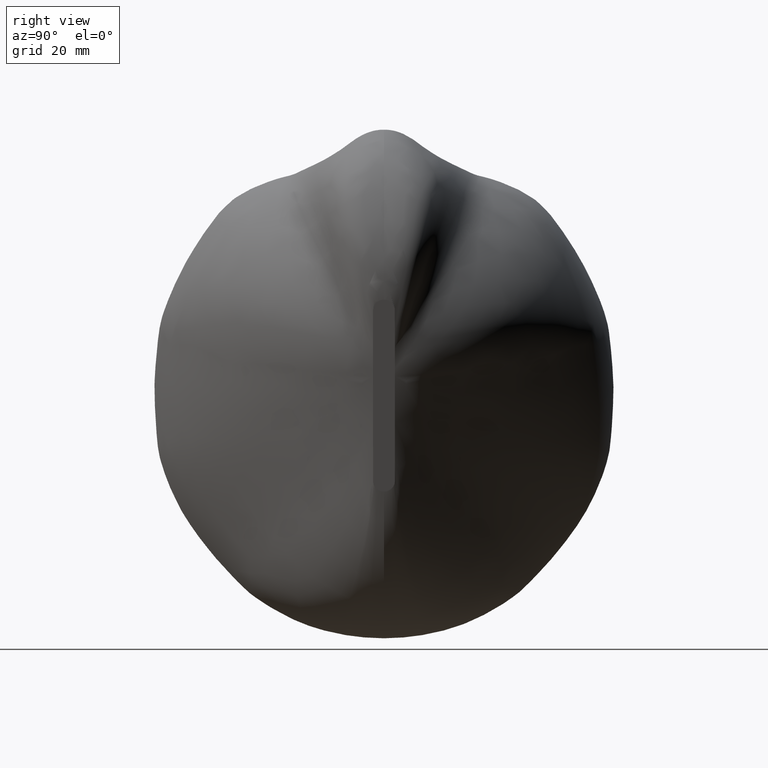
[diagram: clean part render]
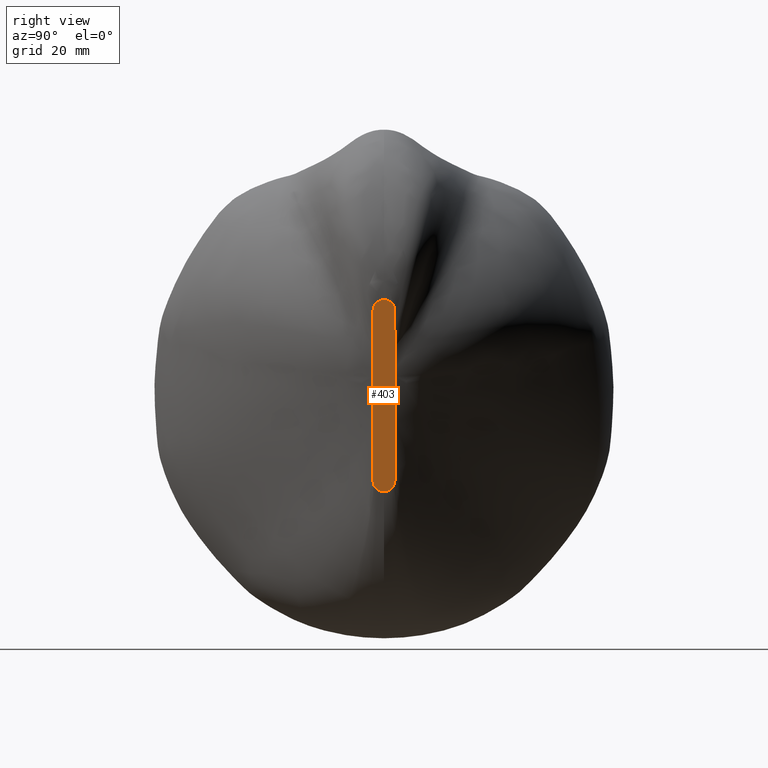
[diagram: same view with one face highlighted and labeled with its STEP entity id]
A machine part, right view. The second image highlights one B-rep face of the part: STEP entity #403.
In plain terms, the highlighted planar face has unit normal (-0.9751, -0, 0.2216).
Its self-contained STEP definition (entity closure, byte-faithful):
#16=PLANE('',#425);
#29=FACE_OUTER_BOUND('',#42,.T.);
#42=EDGE_LOOP('',(#376,#377,#378,#379,#380,#381,#382,#383));
#93=B_SPLINE_CURVE_WITH_KNOTS('',3,(#6838,#6839,#6840,#6841,#6842,#6843,
#6844,#6845,#6846,#6847,#6848,#6849,#6850,#6851,#6852,#6853,#6854,#6855,
#6856,#6857,#6858,#6859,#6860,#6861,#6862,#6863,#6864,#6865,#6866,#6867,
#6868,#6869,#6870,#6871,#6872,#6873,#6874,#6875,#6876,#6877,#6878,#6879,
#6880,#6881,#6882,#6883,#6884,#6885,#6886,#6887,#6888,#6889,#6890,#6891,
#6892,#6893,#6894,#6895,#6896,#6897,#6898,#6899,#6900,#6901,#6902,#6903,
#6904,#6905,#6906,#6907,#6908,#6909,#6910,#6911,#6912,#6913,#6914,#6915,
#6916,#6917,#6918,#6919,#6920,#6921,#6922,#6923,#6924,#6925,#6926,#6927),
 .UNSPECIFIED.,.F.,.F.,(4,1,2,2,1,2,2,1,2,1,2,2,1,2,2,1,2,2,1,2,2,1,2,2,
1,2,2,1,2,2,1,2,2,1,2,2,1,2,2,1,2,2,1,2,2,1,2,2,1,2,2,1,2,4),(0.,0.0160495867075203,
0.0320991734150406,0.0321002126458041,0.0479135779075864,0.0637269431693687,
0.0637293169409129,0.0692713634263698,0.0748134099118266,0.084892031622913,
0.0949706533339995,0.0949745787268651,0.110458217889713,0.125941857052561,
0.125947489770008,0.141345249192275,0.156743008614543,0.156750453243976,
0.172110788641278,0.187471124038579,0.187480440270873,0.202850689584428,
0.218220938897983,0.218232144556112,0.233660003711321,0.24908786286653,
0.249100934119746,0.264635964003725,0.280170993887703,0.280185862639719,
0.295881164061843,0.311576465483967,0.31159301352823,0.32750723764066,0.343421461753089,
0.343439510786205,0.35963943805125,0.375839365316295,0.375858661148673,
0.392422704957964,0.408986748767256,0.409006936813266,0.426030155994207,
0.443053375175148,0.443073962032881,0.460675602844049,0.478277243655217,
0.478297535185516,0.496633004256786,0.514968473328055,0.514987470481529,
0.528122480489924,0.541257490498319,0.541257570106045),.UNSPECIFIED.);
#94=B_SPLINE_CURVE_WITH_KNOTS('',3,(#6929,#6930,#6931,#6932,#6933,#6934,
#6935,#6936,#6937,#6938,#6939,#6940,#6941,#6942,#6943,#6944,#6945,#6946,
#6947),.UNSPECIFIED.,.F.,.F.,(4,1,2,2,1,2,2,1,2,2,4),(0.541257570106045,
0.547346708871446,0.553435927244574,0.553451928041619,0.572928537854931,
0.592405147668243,0.592417041732554,0.611895704912233,0.631374368091913,
0.631382155423489,0.631749487827131),.UNSPECIFIED.);
#95=B_SPLINE_CURVE_WITH_KNOTS('',3,(#6949,#6950,#6951,#6952,#6953,#6954,
#6955,#6956,#6957,#6958,#6959,#6960,#6961,#6962,#6963,#6964,#6965,#6966,
#6967,#6968,#6969,#6970,#6971,#6972,#6973,#6974,#6975,#6976,#6977,#6978,
#6979,#6980,#6981,#6982,#6983,#6984,#6985,#6986,#6987),.UNSPECIFIED.,.F.,
 .F.,(4,1,2,2,1,2,2,1,2,2,1,1,2,2,1,2,2,1,1,2,2,1,2,4),(0.631749487827131,
0.650862871969536,0.670343588515583,0.670347269114423,0.689829825959891,
0.709312382805358,0.709312808939252,0.728795152717773,0.748277496496293,
0.748282029362922,0.767762319775075,0.777502464981151,0.787242610187228,
0.787251249786592,0.806729486832377,0.826207723878162,0.826220470210261,
0.845696653889679,0.855434745729388,0.865172837569097,0.865189690633931,
0.870861755567023,0.876533820500115,0.87653420447235),.UNSPECIFIED.);
#96=B_SPLINE_CURVE_WITH_KNOTS('',3,(#6989,#6990,#6991,#6992,#6993,#6994,
#6995,#6996,#6997,#6998,#6999,#7000,#7001,#7002,#7003,#7004,#7005,#7006,
#7007,#7008,#7009,#7010,#7011,#7012,#7013,#7014,#7015,#7016,#7017,#7018,
#7019,#7020,#7021,#7022,#7023),.UNSPECIFIED.,.F.,.F.,(4,1,2,2,1,2,2,1,2,
2,1,2,2,1,2,1,2,2,1,1,1,4),(0.87653420447235,0.887487104793919,0.898440389087723,
0.898452813711747,0.909991921393148,0.92153102907455,0.921539690707356,
0.931531651139613,0.94152361157187,0.94152964365905,0.950993951340564,0.960458259022077,
0.960462093524623,0.96095182039097,0.961441547257316,0.970462892352147,
0.979484237446977,0.979486089748762,0.989649682034101,0.99981327431944,
0.99990663715972,1.),.UNSPECIFIED.);
#105=B_SPLINE_CURVE_WITH_KNOTS('',3,(#11395,#11396,#11397,#11398,#11399,
#11400,#11401,#11402,#11403,#11404,#11405,#11406,#11407,#11408,#11409,#11410,
#11411,#11412,#11413,#11414,#11415,#11416,#11417,#11418,#11419,#11420,#11421,
#11422,#11423,#11424,#11425),.UNSPECIFIED.,.F.,.F.,(4,2,1,2,1,2,1,2,1,2,
2,1,2,2,1,2,2,1,4),(0.,0.000186710534281933,0.0103503103886555,0.020513910243029,
0.0295361814915254,0.0385584527400218,0.0390500968644372,0.0395417409888525,
0.0490060486519082,0.0584703563149638,0.0584763884453637,0.0684683488505194,
0.0784603092556752,0.0784689709507474,0.0900080785932276,0.101547186235708,
0.101559610950687,0.112512895221024,0.12346586350032),.UNSPECIFIED.);
#106=B_SPLINE_CURVE_WITH_KNOTS('',3,(#11427,#11428,#11429,#11430,#11431,
#11432,#11433,#11434,#11435,#11436,#11437,#11438,#11439,#11440,#11441,#11442,
#11443,#11444,#11445,#11446,#11447,#11448,#11449,#11450,#11451,#11452,#11453,
#11454,#11455,#11456,#11457,#11458,#11459,#11460,#11461,#11462,#11463),
 .UNSPECIFIED.,.F.,.F.,(4,2,1,2,2,1,1,2,2,1,2,2,1,1,2,2,1,2,1,2,2,1,4),
(0.12346586350032,0.123466179491362,0.129138244392352,0.134810309293342,
0.134827162491313,0.154303346109163,0.164041437918088,0.173779529727013,
0.173792276176233,0.193270513168458,0.212748750160684,0.212757389861152,
0.232237680227754,0.241977825411054,0.251717970594355,0.251722503546072,
0.271205060388532,0.290687617230992,0.310170174073452,0.329652730915912,
0.329656411461697,0.349137128031264,0.368251511226967),.UNSPECIFIED.);
#107=B_SPLINE_CURVE_WITH_KNOTS('',3,(#11465,#11466,#11467,#11468,#11469,
#11470,#11471,#11472,#11473,#11474,#11475,#11476,#11477,#11478,#11479,#11480,
#11481,#11482,#11483),.UNSPECIFIED.,.F.,.F.,(4,2,2,1,2,2,1,2,2,1,4),(0.368251511226967,
0.368617844600831,0.368625631895368,0.388104295090559,0.407582958285751,
0.407594852329039,0.427071462149855,0.446548071970671,0.44656407276271,
0.452653291137399,0.458742509512089),.UNSPECIFIED.);
#108=B_SPLINE_CURVE_WITH_KNOTS('',3,(#11484,#11485,#11486,#11487,#11488,
#11489,#11490,#11491,#11492,#11493,#11494,#11495,#11496,#11497,#11498,#11499,
#11500,#11501,#11502,#11503,#11504,#11505,#11506,#11507,#11508,#11509,#11510,
#11511,#11512,#11513,#11514,#11515,#11516,#11517,#11518,#11519,#11520,#11521,
#11522,#11523,#11524,#11525,#11526,#11527,#11528,#11529,#11530,#11531,#11532,
#11533,#11534,#11535,#11536,#11537,#11538,#11539,#11540,#11541,#11542,#11543,
#11544,#11545,#11546,#11547,#11548,#11549,#11550,#11551,#11552,#11553,#11554,
#11555,#11556,#11557,#11558,#11559,#11560,#11561,#11562,#11563,#11564,#11565,
#11566,#11567,#11568,#11569,#11570,#11571),.UNSPECIFIED.,.F.,.F.,(4,1,2,
2,1,2,2,1,2,2,1,2,2,1,2,2,1,2,2,1,2,2,1,2,2,1,2,2,1,2,2,1,2,2,1,2,2,1,2,
2,1,2,2,1,2,1,2,2,1,2,2,1,4),(0.458742515398817,0.471877519518683,0.485012529525277,
0.485031526688174,0.503366995752867,0.52170246481756,0.521722756366477,
0.539324397167111,0.556926037967744,0.55694662484949,0.573969844017648,
0.590993063185806,0.591013251258558,0.607577295054026,0.624141338849494,
0.624160634709426,0.640360561960478,0.65656048921153,0.656578538271618,
0.672492762370518,0.688406986469418,0.688423534539054,0.704118835948573,
0.719814137358092,0.719829006133149,0.735364036005774,0.750899065878399,
0.750912137151821,0.766339996297149,0.781767855442476,0.78177906111766,
0.797149310422934,0.812519559728209,0.812528875974257,0.827889211364928,
0.843249546755599,0.843256991395491,0.858654750812748,0.874052510230006,
0.874058142954774,0.889541782114127,0.90502542127348,0.905029346670851,
0.915107968380231,0.925186590089612,0.930728636574602,0.936270683059591,
0.936273056833329,0.952086422093972,0.967899787354615,0.96790082658598,
0.98395041329299,1.),.UNSPECIFIED.);
#158=VERTEX_POINT('',#6826);
#159=VERTEX_POINT('',#6837);
#160=VERTEX_POINT('',#6928);
#161=VERTEX_POINT('',#6948);
#162=VERTEX_POINT('',#6988);
#168=VERTEX_POINT('',#11394);
#169=VERTEX_POINT('',#11426);
#170=VERTEX_POINT('',#11464);
#224=EDGE_CURVE('',#158,#159,#93,.T.);
#225=EDGE_CURVE('',#159,#160,#94,.T.);
#226=EDGE_CURVE('',#160,#161,#95,.T.);
#227=EDGE_CURVE('',#161,#162,#96,.T.);
#236=EDGE_CURVE('',#162,#168,#105,.T.);
#237=EDGE_CURVE('',#168,#169,#106,.T.);
#238=EDGE_CURVE('',#169,#170,#107,.T.);
#239=EDGE_CURVE('',#170,#158,#108,.T.);
#376=ORIENTED_EDGE('',*,*,#224,.F.);
#377=ORIENTED_EDGE('',*,*,#239,.F.);
#378=ORIENTED_EDGE('',*,*,#238,.F.);
#379=ORIENTED_EDGE('',*,*,#237,.F.);
#380=ORIENTED_EDGE('',*,*,#236,.F.);
#381=ORIENTED_EDGE('',*,*,#227,.F.);
#382=ORIENTED_EDGE('',*,*,#226,.F.);
#383=ORIENTED_EDGE('',*,*,#225,.F.);
#403=ADVANCED_FACE('',(#29),#16,.F.);
#425=AXIS2_PLACEMENT_3D('',#13456,#430,#431);
#430=DIRECTION('center_axis',(-0.975142567848066,-3.99096489087505E-15,
0.221578366206359));
#431=DIRECTION('ref_axis',(0.221578366206359,0.,0.975142567848066));
#6826=CARTESIAN_POINT('',(54.6815074487018,-71.8607379792958,-154.851276539779));
#6837=CARTESIAN_POINT('',(60.4572613359579,-74.2757379792958,-129.432804631596));
#6838=CARTESIAN_POINT('Ctrl Pts',(54.6815074487018,-71.8607379792958,-154.851276539779));
#6839=CARTESIAN_POINT('Ctrl Pts',(54.6815074487018,-72.132006975864,-154.851276539779));
#6840=CARTESIAN_POINT('Ctrl Pts',(54.7019870177205,-72.6744537641634,-154.761168138017));
#6841=CARTESIAN_POINT('Ctrl Pts',(54.7609968777107,-73.1559893564384,-154.501492069618));
#6842=CARTESIAN_POINT('Ctrl Pts',(54.798512323342,-73.3679534789714,-154.336397304571));
#6843=CARTESIAN_POINT('Ctrl Pts',(54.7985147523978,-73.3679672037489,-154.336386614414));
#6844=CARTESIAN_POINT('Ctrl Pts',(54.835475776092,-73.5768142920834,-154.173721786968));
#6845=CARTESIAN_POINT('Ctrl Pts',(54.9249142560851,-73.9384238265398,-153.780099002997));
#6846=CARTESIAN_POINT('Ctrl Pts',(55.0355611563893,-74.1489920785259,-153.293147697356));
#6847=CARTESIAN_POINT('Ctrl Pts',(55.0931945441531,-74.2106446412488,-153.039506494025));
#6848=CARTESIAN_POINT('Ctrl Pts',(55.0932031945608,-74.2106538967105,-153.039468424899));
#6849=CARTESIAN_POINT('Ctrl Pts',(55.1134077479591,-74.2322656645714,-152.950550019493));
#6850=CARTESIAN_POINT('Ctrl Pts',(55.1543571655718,-74.2648504352528,-152.770335153061));
#6851=CARTESIAN_POINT('Ctrl Pts',(55.1958680630801,-74.2757641391216,-152.587649933717));
#6852=CARTESIAN_POINT('Ctrl Pts',(55.2543686777822,-74.2757609281028,-152.330193803247));
#6853=CARTESIAN_POINT('Ctrl Pts',(55.3308537162102,-74.2757578100142,-151.993589913015));
#6854=CARTESIAN_POINT('Ctrl Pts',(55.4091991276749,-74.2757557678607,-151.648799997009));
#6855=CARTESIAN_POINT('Ctrl Pts',(55.4488200478336,-74.2757549223552,-151.474432334748));
#6856=CARTESIAN_POINT('Ctrl Pts',(55.4488354734481,-74.2757549228372,-151.474364448591));
#6857=CARTESIAN_POINT('Ctrl Pts',(55.5096966105185,-74.2757534090047,-151.206519686835));
#6858=CARTESIAN_POINT('Ctrl Pts',(55.633430581741,-74.275748786863,-150.661975127541));
#6859=CARTESIAN_POINT('Ctrl Pts',(55.7607832912628,-74.275746511368,-150.101507106176));
#6860=CARTESIAN_POINT('Ctrl Pts',(55.8252708173513,-74.275745471505,-149.81770336568));
#6861=CARTESIAN_POINT('Ctrl Pts',(55.8252942686861,-74.2757454719292,-149.81760015927));
#6862=CARTESIAN_POINT('Ctrl Pts',(55.8894249106172,-74.2757447896537,-149.535367570537));
#6863=CARTESIAN_POINT('Ctrl Pts',(56.0191970758272,-74.2757428557894,-148.964252773238));
#6864=CARTESIAN_POINT('Ctrl Pts',(56.1516254186386,-74.2757419344679,-148.381449344087));
#6865=CARTESIAN_POINT('Ctrl Pts',(56.2184209227033,-74.2757415051987,-148.087489224628));
#6866=CARTESIAN_POINT('Ctrl Pts',(56.2184532021156,-74.2757415054444,-148.087347166602));
#6867=CARTESIAN_POINT('Ctrl Pts',(56.285086973015,-74.2757411832438,-147.794098788113));
#6868=CARTESIAN_POINT('Ctrl Pts',(56.4193825579773,-74.2757402527681,-147.203077391349));
#6869=CARTESIAN_POINT('Ctrl Pts',(56.5554071501275,-74.2757397956647,-146.604447325102));
#6870=CARTESIAN_POINT('Ctrl Pts',(56.6237790136605,-74.2757395861984,-146.303549890486));
#6871=CARTESIAN_POINT('Ctrl Pts',(56.6238204570735,-74.2757395863444,-146.30336750263));
#6872=CARTESIAN_POINT('Ctrl Pts',(56.69223682201,-74.2757394393248,-146.002274287511));
#6873=CARTESIAN_POINT('Ctrl Pts',(56.8296235632279,-74.2757390192654,-145.397649582667));
#6874=CARTESIAN_POINT('Ctrl Pts',(56.9678268902155,-74.2757388150135,-144.789431404791));
#6875=CARTESIAN_POINT('Ctrl Pts',(57.0370688065759,-74.2757387209066,-144.484705082561));
#6876=CARTESIAN_POINT('Ctrl Pts',(57.0371192505969,-74.2757387209861,-144.484483083928));
#6877=CARTESIAN_POINT('Ctrl Pts',(57.106620642378,-74.2757386532561,-144.178614858825));
#6878=CARTESIAN_POINT('Ctrl Pts',(57.2457033213502,-74.2757384588635,-143.566526730206));
#6879=CARTESIAN_POINT('Ctrl Pts',(57.3846851453898,-74.2757383649301,-142.954882569397));
#6880=CARTESIAN_POINT('Ctrl Pts',(57.4540939779459,-74.2757383216167,-142.649421714408));
#6881=CARTESIAN_POINT('Ctrl Pts',(57.4541527347106,-74.2757383216588,-142.649163132247));
#6882=CARTESIAN_POINT('Ctrl Pts',(57.5240430748062,-74.2757382911988,-142.341583228733));
#6883=CARTESIAN_POINT('Ctrl Pts',(57.6634204364412,-74.2757382034811,-141.728198353151));
#6884=CARTESIAN_POINT('Ctrl Pts',(57.8017540357501,-74.2757381636416,-141.119407026049));
#6885=CARTESIAN_POINT('Ctrl Pts',(57.8706076853242,-74.2757381444976,-140.816389499078));
#6886=CARTESIAN_POINT('Ctrl Pts',(57.8706735225752,-74.2757381445204,-140.816099756443));
#6887=CARTESIAN_POINT('Ctrl Pts',(57.9402361063748,-74.2757381282595,-140.509962277089));
#6888=CARTESIAN_POINT('Ctrl Pts',(58.0784556700294,-74.2757380811385,-139.90167275757));
#6889=CARTESIAN_POINT('Ctrl Pts',(58.2146404473453,-74.27573805605,-139.302338142925));
#6890=CARTESIAN_POINT('Ctrl Pts',(58.2821735311601,-74.2757380452884,-139.005132282388));
#6891=CARTESIAN_POINT('Ctrl Pts',(58.2822446577029,-74.2757380452989,-139.004819262129));
#6892=CARTESIAN_POINT('Ctrl Pts',(58.3507173751797,-74.2757380412834,-138.703478199774));
#6893=CARTESIAN_POINT('Ctrl Pts',(58.4862240099604,-74.275738030102,-138.107128086511));
#6894=CARTESIAN_POINT('Ctrl Pts',(58.6186299478158,-74.2757380301675,-137.524423826326));
#6895=CARTESIAN_POINT('Ctrl Pts',(58.6840049007547,-74.2757380290696,-137.236715698262));
#6896=CARTESIAN_POINT('Ctrl Pts',(58.6840789602531,-74.275738029072,-137.236389770362));
#6897=CARTESIAN_POINT('Ctrl Pts',(58.750624153097,-74.2757380269994,-136.943531532117));
#6898=CARTESIAN_POINT('Ctrl Pts',(58.8816966107797,-74.2757380188861,-136.366695729253));
#6899=CARTESIAN_POINT('Ctrl Pts',(59.008494020245,-74.27573802048,-135.808673987066));
#6900=CARTESIAN_POINT('Ctrl Pts',(59.0707641841307,-74.2757380200312,-135.534629695737));
#6901=CARTESIAN_POINT('Ctrl Pts',(59.0708382645566,-74.275738020033,-135.534303675746));
#6902=CARTESIAN_POINT('Ctrl Pts',(59.134503440061,-74.2757380181942,-135.25412007864));
#6903=CARTESIAN_POINT('Ctrl Pts',(59.2591707166556,-74.2757380110405,-134.705472774844));
#6904=CARTESIAN_POINT('Ctrl Pts',(59.3782358130578,-74.2757380117713,-134.181480097242));
#6905=CARTESIAN_POINT('Ctrl Pts',(59.436295401677,-74.2757380116407,-133.925966092388));
#6906=CARTESIAN_POINT('Ctrl Pts',(59.4363660755302,-74.2757380116386,-133.925655064342));
#6907=CARTESIAN_POINT('Ctrl Pts',(59.4960293174211,-74.2757380143572,-133.663083568007));
#6908=CARTESIAN_POINT('Ctrl Pts',(59.6119532814718,-74.2757380201146,-133.15291470267));
#6909=CARTESIAN_POINT('Ctrl Pts',(59.7207336121382,-74.2757380355835,-132.674184247607));
#6910=CARTESIAN_POINT('Ctrl Pts',(59.773245972962,-74.2757380418977,-132.443083028257));
#6911=CARTESIAN_POINT('Ctrl Pts',(59.7733093986852,-74.2757380418783,-132.442803898363));
#6912=CARTESIAN_POINT('Ctrl Pts',(59.82759903861,-74.2757380599902,-132.203881127098));
#6913=CARTESIAN_POINT('Ctrl Pts',(59.9319002905846,-74.2757381028284,-131.744862761444));
#6914=CARTESIAN_POINT('Ctrl Pts',(60.0272124012496,-74.2757381793952,-131.325404817864));
#6915=CARTESIAN_POINT('Ctrl Pts',(60.0725016070005,-74.2757382066097,-131.126092037749));
#6916=CARTESIAN_POINT('Ctrl Pts',(60.072553753919,-74.2757382065604,-131.125862544504));
#6917=CARTESIAN_POINT('Ctrl Pts',(60.119723124458,-74.2757382442446,-130.918275416739));
#6918=CARTESIAN_POINT('Ctrl Pts',(60.2087073587518,-74.2757383198293,-130.526665771432));
#6919=CARTESIAN_POINT('Ctrl Pts',(60.2864149166194,-74.2757385007717,-130.184684126165));
#6920=CARTESIAN_POINT('Ctrl Pts',(60.3222925330956,-74.2757385613981,-130.02679091584));
#6921=CARTESIAN_POINT('Ctrl Pts',(60.3223296636159,-74.2757385613063,-130.026627507924));
#6922=CARTESIAN_POINT('Ctrl Pts',(60.3480374290196,-74.2757386120415,-129.913490666072));
#6923=CARTESIAN_POINT('Ctrl Pts',(60.3962857623614,-74.2757387322034,-129.701155577381));
#6924=CARTESIAN_POINT('Ctrl Pts',(60.4380628458272,-74.2757389363714,-129.517300210116));
#6925=CARTESIAN_POINT('Ctrl Pts',(60.4572623328842,-74.2757390498609,-129.432805935196));
#6926=CARTESIAN_POINT('Ctrl Pts',(60.4572624492463,-74.2757390498616,-129.432805423103));
#6927=CARTESIAN_POINT('Ctrl Pts',(60.4572625656085,-74.2757390498623,-129.432804911009));
#6928=CARTESIAN_POINT('',(60.8540701586889,-74.2757379792958,-127.686491663559));
#6929=CARTESIAN_POINT('Ctrl Pts',(60.4572625656085,-74.2757390498623,-129.432804911009));
#6930=CARTESIAN_POINT('Ctrl Pts',(60.4661630256982,-74.2757391024725,-129.393635222797));
#6931=CARTESIAN_POINT('Ctrl Pts',(60.4839639950679,-74.2757391260405,-129.31529519571));
#6932=CARTESIAN_POINT('Ctrl Pts',(60.5017650117603,-74.2757392071372,-129.236955266212));
#6933=CARTESIAN_POINT('Ctrl Pts',(60.5106889599247,-74.2757392397554,-129.197682103192));
#6934=CARTESIAN_POINT('Ctrl Pts',(60.510712347883,-74.2757392395079,-129.197579173986));
#6935=CARTESIAN_POINT('Ctrl Pts',(60.5392047310732,-74.2757395821666,-129.072189080687));
#6936=CARTESIAN_POINT('Ctrl Pts',(60.5961427914234,-74.2757403529882,-128.821614897025));
#6937=CARTESIAN_POINT('Ctrl Pts',(60.6530815146411,-74.2757419297771,-128.571042081086));
#6938=CARTESIAN_POINT('Ctrl Pts',(60.6815680771352,-74.2757424938062,-128.445678780999));
#6939=CARTESIAN_POINT('Ctrl Pts',(60.6815854620581,-74.2757424932227,-128.44560226872));
#6940=CARTESIAN_POINT('Ctrl Pts',(60.7100752620521,-74.2757433443719,-128.320226247269));
#6941=CARTESIAN_POINT('Ctrl Pts',(60.7670201008488,-74.2757450583776,-128.069627246919));
#6942=CARTESIAN_POINT('Ctrl Pts',(60.8239669509593,-74.2757492180211,-127.819032397775));
#6943=CARTESIAN_POINT('Ctrl Pts',(60.8524512509506,-74.2757506805002,-127.693683831521));
#6944=CARTESIAN_POINT('Ctrl Pts',(60.852462632764,-74.2757506794906,-127.693633736016));
#6945=CARTESIAN_POINT('Ctrl Pts',(60.85301097653,-74.2757507232811,-127.691220766879));
#6946=CARTESIAN_POINT('Ctrl Pts',(60.8535479369041,-74.2757507661618,-127.688857889989));
#6947=CARTESIAN_POINT('Ctrl Pts',(60.8540848972869,-74.275750809053,-127.686495013117));
#6948=CARTESIAN_POINT('',(61.9274687980246,-74.2757379792958,-122.96257965262));
#6949=CARTESIAN_POINT('Ctrl Pts',(60.8540848972869,-74.275750809053,-127.686495013117));
#6950=CARTESIAN_POINT('Ctrl Pts',(60.8820245235317,-74.2757530408105,-127.563547587601));
#6951=CARTESIAN_POINT('Ctrl Pts',(60.938440783914,-74.275757605014,-127.315289957935));
#6952=CARTESIAN_POINT('Ctrl Pts',(60.9948624930637,-74.2757687947148,-127.067043575138));
#6953=CARTESIAN_POINT('Ctrl Pts',(61.0233458391325,-74.2757727468545,-126.941712443884));
#6954=CARTESIAN_POINT('Ctrl Pts',(61.0233512179622,-74.2757727455718,-126.941688765413));
#6955=CARTESIAN_POINT('Ctrl Pts',(61.0518390124289,-74.2757788358013,-126.816349424571));
#6956=CARTESIAN_POINT('Ctrl Pts',(61.1088032214157,-74.2757902632786,-126.565716815718));
#6957=CARTESIAN_POINT('Ctrl Pts',(61.165783938257,-74.2758217604805,-126.315118277131));
#6958=CARTESIAN_POINT('Ctrl Pts',(61.1942687459852,-74.2758300075673,-126.189803528804));
#6959=CARTESIAN_POINT('Ctrl Pts',(61.1942693688614,-74.2758300075686,-126.189800787603));
#6960=CARTESIAN_POINT('Ctrl Pts',(61.2227401931571,-74.2758216706872,-126.06445922597));
#6961=CARTESIAN_POINT('Ctrl Pts',(61.2796682196441,-74.2757899743858,-125.813756063019));
#6962=CARTESIAN_POINT('Ctrl Pts',(61.3366125962305,-74.2757782131611,-125.563086693037));
#6963=CARTESIAN_POINT('Ctrl Pts',(61.3650911952359,-74.2757720483336,-125.437722386006));
#6964=CARTESIAN_POINT('Ctrl Pts',(61.3650978221607,-74.2757720498816,-125.437693229952));
#6965=CARTESIAN_POINT('Ctrl Pts',(61.3935754528527,-74.2757683729444,-125.31234633977));
#6966=CARTESIAN_POINT('Ctrl Pts',(61.4362771395602,-74.2757571638581,-125.124359931855));
#6967=CARTESIAN_POINT('Ctrl Pts',(61.4932236750889,-74.2757553039061,-124.873733802698));
#6968=CARTESIAN_POINT('Ctrl Pts',(61.5216943064283,-74.2757513311655,-124.748415432577));
#6969=CARTESIAN_POINT('Ctrl Pts',(61.5359436265835,-74.2757509394825,-124.685703446005));
#6970=CARTESIAN_POINT('Ctrl Pts',(61.5359562555105,-74.2757509400399,-124.685647870832));
#6971=CARTESIAN_POINT('Ctrl Pts',(61.5644389007151,-74.2757498617038,-124.560292053438));
#6972=CARTESIAN_POINT('Ctrl Pts',(61.621377708547,-74.2757462400429,-124.309689061982));
#6973=CARTESIAN_POINT('Ctrl Pts',(61.6783184091204,-74.2757455739234,-124.059090525738));
#6974=CARTESIAN_POINT('Ctrl Pts',(61.7068074095704,-74.2757450888752,-123.933709156445));
#6975=CARTESIAN_POINT('Ctrl Pts',(61.7068260412606,-74.2757450891149,-123.933627163513));
#6976=CARTESIAN_POINT('Ctrl Pts',(61.7353122665841,-74.2757450318112,-123.808259597748));
#6977=CARTESIAN_POINT('Ctrl Pts',(61.7780128150727,-74.2757451399315,-123.620330520688));
#6978=CARTESIAN_POINT('Ctrl Pts',(61.834948597337,-74.2757457288006,-123.369760587004));
#6979=CARTESIAN_POINT('Ctrl Pts',(61.8634159267118,-74.2757465832061,-123.244475501653));
#6980=CARTESIAN_POINT('Ctrl Pts',(61.8776745226978,-74.2757467211493,-123.181724616543));
#6981=CARTESIAN_POINT('Ctrl Pts',(61.8776991567841,-74.2757467207893,-123.181616205231));
#6982=CARTESIAN_POINT('Ctrl Pts',(61.8860145364331,-74.2757468208682,-123.145020981847));
#6983=CARTESIAN_POINT('Ctrl Pts',(61.902595982981,-74.2757471315215,-123.072047403099));
#6984=CARTESIAN_POINT('Ctrl Pts',(61.919177481156,-74.2757474344266,-122.999073871787));
#6985=CARTESIAN_POINT('Ctrl Pts',(61.9274687018501,-74.2757479242118,-122.962584825896));
#6986=CARTESIAN_POINT('Ctrl Pts',(61.927469263109,-74.275747924245,-122.962582355836));
#6987=CARTESIAN_POINT('Ctrl Pts',(61.9274698243882,-74.2757479242781,-122.962579885689));
#6988=CARTESIAN_POINT('',(64.3135190276922,-71.8607379792958,-112.461829115423));
#6989=CARTESIAN_POINT('Ctrl Pts',(61.9274698243882,-74.2757479242781,-122.962579885689));
#6990=CARTESIAN_POINT('Ctrl Pts',(61.9434804468003,-74.2757488699793,-122.892118326752));
#6991=CARTESIAN_POINT('Ctrl Pts',(62.0083090218341,-74.2757501202837,-122.606813854819));
#6992=CARTESIAN_POINT('Ctrl Pts',(62.1260555785159,-74.2757528637815,-122.088623231146));
#6993=CARTESIAN_POINT('Ctrl Pts',(62.1950638837521,-74.2757537929641,-121.784924835171));
#6994=CARTESIAN_POINT('Ctrl Pts',(62.1951420866425,-74.2757537912567,-121.784580673029));
#6995=CARTESIAN_POINT('Ctrl Pts',(62.2678610395641,-74.275755164122,-121.464552146646));
#6996=CARTESIAN_POINT('Ctrl Pts',(62.4354546671586,-74.2757583674364,-120.726989967252));
#6997=CARTESIAN_POINT('Ctrl Pts',(62.6328271587751,-74.275763911268,-119.858374375719));
#6998=CARTESIAN_POINT('Ctrl Pts',(62.7353238950392,-74.2757658268112,-119.407297074943));
#6999=CARTESIAN_POINT('Ctrl Pts',(62.7354007774437,-74.2757658247046,-119.406958723889));
#7000=CARTESIAN_POINT('Ctrl Pts',(62.8241700303123,-74.2757677671382,-119.016294701704));
#7001=CARTESIAN_POINT('Ctrl Pts',(63.0071493376567,-74.2757723232388,-118.211022232372));
#7002=CARTESIAN_POINT('Ctrl Pts',(63.1916787192624,-74.2757798130514,-117.398928095091));
#7003=CARTESIAN_POINT('Ctrl Pts',(63.2819759844371,-74.2757824307204,-117.001539473058));
#7004=CARTESIAN_POINT('Ctrl Pts',(63.2820304633584,-74.2757824283487,-117.001299717234));
#7005=CARTESIAN_POINT('Ctrl Pts',(63.3675598130356,-74.2757854599141,-116.624894187197));
#7006=CARTESIAN_POINT('Ctrl Pts',(63.5348784606609,-74.2757925903756,-115.888542655931));
#7007=CARTESIAN_POINT('Ctrl Pts',(63.6867435231595,-74.275804213027,-115.22020069572));
#7008=CARTESIAN_POINT('Ctrl Pts',(63.7567937841995,-74.2758077964744,-114.911916978562));
#7009=CARTESIAN_POINT('Ctrl Pts',(63.7568221532827,-74.2758077953845,-114.911792129289));
#7010=CARTESIAN_POINT('Ctrl Pts',(63.7604735536927,-74.2758078163338,-114.895722708875));
#7011=CARTESIAN_POINT('Ctrl Pts',(63.7676879464119,-74.2758080672693,-114.863972947263));
#7012=CARTESIAN_POINT('Ctrl Pts',(63.7748379394324,-74.2758076760629,-114.832506592092));
#7013=CARTESIAN_POINT('Ctrl Pts',(63.8439484270347,-74.2758249089124,-114.528359018268));
#7014=CARTESIAN_POINT('Ctrl Pts',(63.9750238257583,-74.1656515706715,-113.951510850127));
#7015=CARTESIAN_POINT('Ctrl Pts',(64.0886288540694,-73.8506997115398,-113.451547997898));
#7016=CARTESIAN_POINT('Ctrl Pts',(64.1372646137827,-73.6522631318646,-113.237507444485));
#7017=CARTESIAN_POINT('Ctrl Pts',(64.1372745984104,-73.6522223918699,-113.237463503209));
#7018=CARTESIAN_POINT('Ctrl Pts',(64.1920663962807,-73.4286667321888,-112.9963304935));
#7019=CARTESIAN_POINT('Ctrl Pts',(64.2807293833673,-72.8776624251398,-112.606133571151));
#7020=CARTESIAN_POINT('Ctrl Pts',(64.3130919454681,-72.2093434810381,-112.463708775664));
#7021=CARTESIAN_POINT('Ctrl Pts',(64.3135163910763,-71.8699232965183,-112.461840717465));
#7022=CARTESIAN_POINT('Ctrl Pts',(64.3135190276922,-71.8637997327348,-112.461829115423));
#7023=CARTESIAN_POINT('Ctrl Pts',(64.3135190276922,-71.8607379792958,-112.461829115423));
#11394=CARTESIAN_POINT('',(61.9274687980246,-69.4457379792958,-122.96257965262));
#11395=CARTESIAN_POINT('Ctrl Pts',(64.3135190276922,-71.8607379792958,-112.461829115423));
#11396=CARTESIAN_POINT('Ctrl Pts',(64.3135190276922,-71.8546149691263,-112.461829115423));
#11397=CARTESIAN_POINT('Ctrl Pts',(64.3135138053022,-71.8484918683544,-112.461852098319));
#11398=CARTESIAN_POINT('Ctrl Pts',(64.3129470274905,-71.5090800327761,-112.464346451565));
#11399=CARTESIAN_POINT('Ctrl Pts',(64.2807303830509,-70.8438093127715,-112.606128518907));
#11400=CARTESIAN_POINT('Ctrl Pts',(64.1920660260382,-70.2928001968722,-112.996330886627));
#11401=CARTESIAN_POINT('Ctrl Pts',(64.0886587029934,-69.8708665725946,-113.451415503911));
#11402=CARTESIAN_POINT('Ctrl Pts',(63.9750452596719,-69.5558421890708,-113.951416098397));
#11403=CARTESIAN_POINT('Ctrl Pts',(63.8439559926972,-69.4456484369058,-114.528325955628));
#11404=CARTESIAN_POINT('Ctrl Pts',(63.7748246839742,-69.4456646665574,-114.832565443802));
#11405=CARTESIAN_POINT('Ctrl Pts',(63.7676465799325,-69.4456643438615,-114.864155507975));
#11406=CARTESIAN_POINT('Ctrl Pts',(63.760403548787,-69.4456644777354,-114.896031308945));
#11407=CARTESIAN_POINT('Ctrl Pts',(63.6867442471726,-69.4456688393761,-115.220198022005));
#11408=CARTESIAN_POINT('Ctrl Pts',(63.5348790188591,-69.4456807325602,-115.888540662581));
#11409=CARTESIAN_POINT('Ctrl Pts',(63.3675603152422,-69.4456883121157,-116.624892435864));
#11410=CARTESIAN_POINT('Ctrl Pts',(63.2820309313522,-69.445691477527,-117.001298105375));
#11411=CARTESIAN_POINT('Ctrl Pts',(63.2819764520697,-69.4456914750487,-117.001537862817));
#11412=CARTESIAN_POINT('Ctrl Pts',(63.1916791509517,-69.4456942129384,-117.3989265863));
#11413=CARTESIAN_POINT('Ctrl Pts',(63.007149665665,-69.4457020381372,-118.211021005579));
#11414=CARTESIAN_POINT('Ctrl Pts',(62.8241702914871,-69.4457068415428,-119.016293627455));
#11415=CARTESIAN_POINT('Ctrl Pts',(62.7354010074389,-69.4457088837435,-119.406957714613));
#11416=CARTESIAN_POINT('Ctrl Pts',(62.7353241245286,-69.4457088815241,-119.407296068057));
#11417=CARTESIAN_POINT('Ctrl Pts',(62.6328273311657,-69.4457109045075,-119.858373380755));
#11418=CARTESIAN_POINT('Ctrl Pts',(62.4354546806339,-69.4457167460622,-120.726989010056));
#11419=CARTESIAN_POINT('Ctrl Pts',(62.267860902421,-69.4457201882377,-121.464551097869));
#11420=CARTESIAN_POINT('Ctrl Pts',(62.1951418914183,-69.445721655619,-121.784579601809));
#11421=CARTESIAN_POINT('Ctrl Pts',(62.195063688038,-69.4457216537779,-121.784923766521));
#11422=CARTESIAN_POINT('Ctrl Pts',(62.1260553292453,-69.4457226680319,-122.088622122064));
#11423=CARTESIAN_POINT('Ctrl Pts',(62.0083082660226,-69.4457256495169,-122.606814255467));
#11424=CARTESIAN_POINT('Ctrl Pts',(61.9434795009645,-69.4457271030435,-122.892118687345));
#11425=CARTESIAN_POINT('Ctrl Pts',(61.9274688881488,-69.4457281790713,-122.962579673058));
#11426=CARTESIAN_POINT('',(60.854070158741,-69.4457379792958,-127.68649166333));
#11427=CARTESIAN_POINT('Ctrl Pts',(61.9274688881488,-69.4457281790713,-122.962579673058));
#11428=CARTESIAN_POINT('Ctrl Pts',(61.9274684262456,-69.4457281791023,-122.962581705844));
#11429=CARTESIAN_POINT('Ctrl Pts',(61.9274679643562,-69.4457281791334,-122.96258373857));
#11430=CARTESIAN_POINT('Ctrl Pts',(61.9191767940387,-69.4457287364027,-122.99907228776));
#11431=CARTESIAN_POINT('Ctrl Pts',(61.9025952706922,-69.4457290796239,-123.072045788034));
#11432=CARTESIAN_POINT('Ctrl Pts',(61.8860137547034,-69.4457294656291,-123.145019266995));
#11433=CARTESIAN_POINT('Ctrl Pts',(61.8776983547323,-69.4457296037429,-123.181614450845));
#11434=CARTESIAN_POINT('Ctrl Pts',(61.8776737205206,-69.4457296029804,-123.181722863354));
#11435=CARTESIAN_POINT('Ctrl Pts',(61.8491811118491,-69.4457304377355,-123.307115775999));
#11436=CARTESIAN_POINT('Ctrl Pts',(61.8064793814907,-69.4457333541264,-123.495041524463));
#11437=CARTESIAN_POINT('Ctrl Pts',(61.7495432735451,-69.4457338398555,-123.745611257326));
#11438=CARTESIAN_POINT('Ctrl Pts',(61.7210753378643,-69.4457349005408,-123.870895645619));
#11439=CARTESIAN_POINT('Ctrl Pts',(61.7068226774873,-69.4457350083032,-123.933620080987));
#11440=CARTESIAN_POINT('Ctrl Pts',(61.7068040461298,-69.4457350080667,-123.933702075574));
#11441=CARTESIAN_POINT('Ctrl Pts',(61.6783143690696,-69.4457353285214,-124.059082094829));
#11442=CARTESIAN_POINT('Ctrl Pts',(61.6213723224629,-69.4457363376794,-124.309677902379));
#11443=CARTESIAN_POINT('Ctrl Pts',(61.5644302229295,-69.4457367655952,-124.560274149089));
#11444=CARTESIAN_POINT('Ctrl Pts',(61.535946537655,-69.4457369746321,-124.685627832164));
#11445=CARTESIAN_POINT('Ctrl Pts',(61.5359339090993,-69.4457369745328,-124.685683409068));
#11446=CARTESIAN_POINT('Ctrl Pts',(61.5074472033154,-69.4457370967009,-124.81105033059));
#11447=CARTESIAN_POINT('Ctrl Pts',(61.464736111214,-69.4457374705628,-124.999017223417));
#11448=CARTESIAN_POINT('Ctrl Pts',(61.4077879410373,-69.4457375427184,-125.2496400429));
#11449=CARTESIAN_POINT('Ctrl Pts',(61.3793138788457,-69.445737692396,-125.374951406449));
#11450=CARTESIAN_POINT('Ctrl Pts',(61.3650702074608,-69.4457377048765,-125.437636266438));
#11451=CARTESIAN_POINT('Ctrl Pts',(61.3650635817103,-69.4457377048762,-125.437665425712));
#11452=CARTESIAN_POINT('Ctrl Pts',(61.3365795008881,-69.4457376819289,-125.563020450876));
#11453=CARTESIAN_POINT('Ctrl Pts',(61.2796245328875,-69.4457376173249,-125.813672014429));
#11454=CARTESIAN_POINT('Ctrl Pts',(61.2226695853661,-69.445737484811,-126.064323713638));
#11455=CARTESIAN_POINT('Ctrl Pts',(61.1657145034628,-69.445737247224,-126.314975084389));
#11456=CARTESIAN_POINT('Ctrl Pts',(61.1087595996571,-69.4457371809233,-126.565626857795));
#11457=CARTESIAN_POINT('Ctrl Pts',(61.0518044050635,-69.4457367691271,-126.816278040956));
#11458=CARTESIAN_POINT('Ctrl Pts',(61.0233215241993,-69.4457366702516,-126.941627511364));
#11459=CARTESIAN_POINT('Ctrl Pts',(61.0233161443929,-69.4457366702503,-126.94165118732));
#11460=CARTESIAN_POINT('Ctrl Pts',(60.9948361388356,-69.4457367791165,-127.066989208643));
#11461=CARTESIAN_POINT('Ctrl Pts',(60.9384225216109,-69.445737194814,-127.315261723407));
#11462=CARTESIAN_POINT('Ctrl Pts',(60.8820086605393,-69.4457373226649,-127.563533741118));
#11463=CARTESIAN_POINT('Ctrl Pts',(60.8540694713531,-69.4457373966825,-127.686491507138));
#11464=CARTESIAN_POINT('',(60.4572613359579,-69.4457379792958,-129.432804631596));
#11465=CARTESIAN_POINT('Ctrl Pts',(60.8540694713531,-69.4457373966825,-127.686491507138));
#11466=CARTESIAN_POINT('Ctrl Pts',(60.8535340077008,-69.4457373981011,-127.688848032735));
#11467=CARTESIAN_POINT('Ctrl Pts',(60.852998544052,-69.4457373995236,-127.691204558339));
#11468=CARTESIAN_POINT('Ctrl Pts',(60.852451697843,-69.4457374009809,-127.693611177555));
#11469=CARTESIAN_POINT('Ctrl Pts',(60.8524403152208,-69.4457374009422,-127.693661271042));
#11470=CARTESIAN_POINT('Ctrl Pts',(60.8239572751908,-69.4457374683715,-127.819012436597));
#11471=CARTESIAN_POINT('Ctrl Pts',(60.7670140150674,-69.4457376675449,-128.069614692804));
#11472=CARTESIAN_POINT('Ctrl Pts',(60.7100706641547,-69.4457377595178,-128.320216763882));
#11473=CARTESIAN_POINT('Ctrl Pts',(60.6815816003051,-69.4457378020426,-128.445594304212));
#11474=CARTESIAN_POINT('Ctrl Pts',(60.6815642149118,-69.4457378020174,-128.445670815322));
#11475=CARTESIAN_POINT('Ctrl Pts',(60.6530781317999,-69.4457378205124,-128.571035103944));
#11476=CARTESIAN_POINT('Ctrl Pts',(60.5961407468854,-69.445737870207,-128.821610679934));
#11477=CARTESIAN_POINT('Ctrl Pts',(60.5392033313919,-69.4457378837519,-129.072186193396));
#11478=CARTESIAN_POINT('Ctrl Pts',(60.5107112367508,-69.44573789193,-129.197576881735));
#11479=CARTESIAN_POINT('Ctrl Pts',(60.51068784859,-69.4457378919225,-129.197679810476));
#11480=CARTESIAN_POINT('Ctrl Pts',(60.501763928697,-69.4457378936083,-129.236953031778));
#11481=CARTESIAN_POINT('Ctrl Pts',(60.4839628669903,-69.4457378990308,-129.315293620592));
#11482=CARTESIAN_POINT('Ctrl Pts',(60.4661618017748,-69.445737900353,-129.393634202121));
#11483=CARTESIAN_POINT('Ctrl Pts',(60.4572612713776,-69.4457379035953,-129.432804497453));
#11484=CARTESIAN_POINT('Ctrl Pts',(60.457261245564,-69.4457379035953,-129.432804611056));
#11485=CARTESIAN_POINT('Ctrl Pts',(60.4380619813132,-69.4457379105893,-129.51729854763));
#11486=CARTESIAN_POINT('Ctrl Pts',(60.3962850846785,-69.4457379233925,-129.701154249149));
#11487=CARTESIAN_POINT('Ctrl Pts',(60.3480368664705,-69.4457379297226,-129.913489505442));
#11488=CARTESIAN_POINT('Ctrl Pts',(60.3223291452269,-69.4457379325498,-130.026626438484));
#11489=CARTESIAN_POINT('Ctrl Pts',(60.3222920146083,-69.4457379325448,-130.026789846316));
#11490=CARTESIAN_POINT('Ctrl Pts',(60.2864144508439,-69.4457379357723,-130.184683165289));
#11491=CARTESIAN_POINT('Ctrl Pts',(60.2087070512334,-69.4457379465128,-130.526665136528));
#11492=CARTESIAN_POINT('Ctrl Pts',(60.1197228799514,-69.4457379469948,-130.918274911078));
#11493=CARTESIAN_POINT('Ctrl Pts',(60.0725535417138,-69.4457379483927,-131.125862105578));
#11494=CARTESIAN_POINT('Ctrl Pts',(60.0725013947035,-69.445737948389,-131.126091598942));
#11495=CARTESIAN_POINT('Ctrl Pts',(60.0272122144816,-69.4457379518959,-131.325404432522));
#11496=CARTESIAN_POINT('Ctrl Pts',(59.9319001765882,-69.445737962881,-131.744862527682));
#11497=CARTESIAN_POINT('Ctrl Pts',(59.8275989660347,-69.4457379691162,-132.20388098059));
#11498=CARTESIAN_POINT('Ctrl Pts',(59.7733093435963,-69.4457379718474,-132.442803788896));
#11499=CARTESIAN_POINT('Ctrl Pts',(59.7732459177794,-69.4457379718438,-132.443082919075));
#11500=CARTESIAN_POINT('Ctrl Pts',(59.7207335641584,-69.4457379736055,-132.674184153407));
#11501=CARTESIAN_POINT('Ctrl Pts',(59.6119532513011,-69.4457379780387,-133.15291464389));
#11502=CARTESIAN_POINT('Ctrl Pts',(59.4960292979356,-69.4457379821378,-133.663083530841));
#11503=CARTESIAN_POINT('Ctrl Pts',(59.4363660605237,-69.445737983839,-133.925655036697));
#11504=CARTESIAN_POINT('Ctrl Pts',(59.4362953865704,-69.4457379838355,-133.925966065141));
#11505=CARTESIAN_POINT('Ctrl Pts',(59.3782358012052,-69.4457379864504,-134.181480077091));
#11506=CARTESIAN_POINT('Ctrl Pts',(59.2591707133627,-69.4457379927,-134.705472771743));
#11507=CARTESIAN_POINT('Ctrl Pts',(59.134503444655,-69.4457380025128,-135.254120092016));
#11508=CARTESIAN_POINT('Ctrl Pts',(59.070838271964,-69.4457380054844,-135.534303695504));
#11509=CARTESIAN_POINT('Ctrl Pts',(59.0707641914289,-69.4457380054827,-135.534629715954));
#11510=CARTESIAN_POINT('Ctrl Pts',(59.0084940289652,-69.4457380047154,-135.808674010631));
#11511=CARTESIAN_POINT('Ctrl Pts',(58.8816966224041,-69.4457380002199,-136.366695757975));
#11512=CARTESIAN_POINT('Ctrl Pts',(58.7506241703572,-69.4457380011454,-136.943531572654));
#11513=CARTESIAN_POINT('Ctrl Pts',(58.6840789793992,-69.4457380007631,-137.236389815411));
#11514=CARTESIAN_POINT('Ctrl Pts',(58.6840049197866,-69.445738000765,-137.23671574379));
#11515=CARTESIAN_POINT('Ctrl Pts',(58.6186299695235,-69.4457379985658,-137.524423878274));
#11516=CARTESIAN_POINT('Ctrl Pts',(58.4862240374965,-69.4457379913311,-138.107128150777));
#11517=CARTESIAN_POINT('Ctrl Pts',(58.3507174153139,-69.445737987542,-138.703478292156));
#11518=CARTESIAN_POINT('Ctrl Pts',(58.282244701061,-69.4457379850096,-139.004819362118));
#11519=CARTESIAN_POINT('Ctrl Pts',(58.2821735744096,-69.4457379850178,-139.005132382859));
#11520=CARTESIAN_POINT('Ctrl Pts',(58.2146404865539,-69.4457379760446,-139.302338233614));
#11521=CARTESIAN_POINT('Ctrl Pts',(58.0784556952446,-69.4457379516917,-139.901672812962));
#11522=CARTESIAN_POINT('Ctrl Pts',(57.9402361235086,-69.4457379221183,-140.509962310308));
#11523=CARTESIAN_POINT('Ctrl Pts',(57.8706735362339,-69.4457379108751,-140.816099780926));
#11524=CARTESIAN_POINT('Ctrl Pts',(57.8706076988838,-69.4457379108919,-140.816389524018));
#11525=CARTESIAN_POINT('Ctrl Pts',(57.8017540480028,-69.445737895888,-141.119407047283));
#11526=CARTESIAN_POINT('Ctrl Pts',(57.6634204459613,-69.4457378613491,-141.728198365158));
#11527=CARTESIAN_POINT('Ctrl Pts',(57.5240430826787,-69.4457378015964,-142.341583231986));
#11528=CARTESIAN_POINT('Ctrl Pts',(57.4541527426298,-69.4457377812725,-142.649163134528));
#11529=CARTESIAN_POINT('Ctrl Pts',(57.45409398577,-69.4457377812953,-142.649421717081));
#11530=CARTESIAN_POINT('Ctrl Pts',(57.3846851604752,-69.445737761717,-142.954882588473));
#11531=CARTESIAN_POINT('Ctrl Pts',(57.2457033554596,-69.4457377218308,-143.566526791564));
#11532=CARTESIAN_POINT('Ctrl Pts',(57.1066207044969,-69.4457376320308,-144.178614980673));
#11533=CARTESIAN_POINT('Ctrl Pts',(57.0371193187646,-69.4457375956832,-144.484483217852));
#11534=CARTESIAN_POINT('Ctrl Pts',(57.0370688746765,-69.4457375957475,-144.48470521685));
#11535=CARTESIAN_POINT('Ctrl Pts',(56.9678269326529,-69.4457375012295,-144.789431469587));
#11536=CARTESIAN_POINT('Ctrl Pts',(56.8296235294731,-69.4457372679701,-145.39764944328));
#11537=CARTESIAN_POINT('Ctrl Pts',(56.6922367075767,-69.4457368936287,-146.002273922927));
#11538=CARTESIAN_POINT('Ctrl Pts',(56.6238203112476,-69.4457367584228,-146.30336705155));
#11539=CARTESIAN_POINT('Ctrl Pts',(56.6237788678025,-69.445736758554,-146.303549439756));
#11540=CARTESIAN_POINT('Ctrl Pts',(56.5554069644355,-69.445736573215,-146.604446763666));
#11541=CARTESIAN_POINT('Ctrl Pts',(56.4193822791311,-69.445736157624,-147.203076571011));
#11542=CARTESIAN_POINT('Ctrl Pts',(56.285086542062,-69.4457353729811,-147.794097539264));
#11543=CARTESIAN_POINT('Ctrl Pts',(56.2184527176613,-69.4457350937571,-148.087345767426));
#11544=CARTESIAN_POINT('Ctrl Pts',(56.2184204382418,-69.4457350939826,-148.087487825759));
#11545=CARTESIAN_POINT('Ctrl Pts',(56.1516248708205,-69.4457346833548,-148.381447765077));
#11546=CARTESIAN_POINT('Ctrl Pts',(56.0191963932733,-69.4457337694577,-148.964250808802));
#11547=CARTESIAN_POINT('Ctrl Pts',(55.889423947989,-69.4457319894567,-149.535364810746));
#11548=CARTESIAN_POINT('Ctrl Pts',(55.8252932105079,-69.445731371627,-149.817597127899));
#11549=CARTESIAN_POINT('Ctrl Pts',(55.8252697591953,-69.4457313719783,-149.817700334593));
#11550=CARTESIAN_POINT('Ctrl Pts',(55.7607821147818,-69.4457305641478,-150.101503736802));
#11551=CARTESIAN_POINT('Ctrl Pts',(55.6334291668122,-69.4457288513001,-150.661971070704));
#11552=CARTESIAN_POINT('Ctrl Pts',(55.5096946350924,-69.4457251927554,-151.20651403902));
#11553=CARTESIAN_POINT('Ctrl Pts',(55.4488333325606,-69.4457239862981,-151.474358328806));
#11554=CARTESIAN_POINT('Ctrl Pts',(55.4488179069593,-69.4457239867072,-151.474426215132));
#11555=CARTESIAN_POINT('Ctrl Pts',(55.4091969772696,-69.4457232175023,-151.648793839802));
#11556=CARTESIAN_POINT('Ctrl Pts',(55.3308516109364,-69.4457212878304,-151.993583849285));
#11557=CARTESIAN_POINT('Ctrl Pts',(55.2543664411895,-69.4457185318317,-152.330187342826));
#11558=CARTESIAN_POINT('Ctrl Pts',(55.1958657286696,-69.4457156355772,-152.587643170256));
#11559=CARTESIAN_POINT('Ctrl Pts',(55.1543548135918,-69.4566293968233,-152.770328333995));
#11560=CARTESIAN_POINT('Ctrl Pts',(55.1134053102652,-69.489214382185,-152.950542948443));
#11561=CARTESIAN_POINT('Ctrl Pts',(55.0932007165634,-69.5108262230995,-153.039461236756));
#11562=CARTESIAN_POINT('Ctrl Pts',(55.0931920662085,-69.5108354785037,-153.039499306091));
#11563=CARTESIAN_POINT('Ctrl Pts',(55.0355581945744,-69.5724884835043,-153.293139128565));
#11564=CARTESIAN_POINT('Ctrl Pts',(54.9249101818107,-69.7830576521983,-153.780087203408));
#11565=CARTESIAN_POINT('Ctrl Pts',(54.8354695267642,-70.144669312927,-154.17370394276));
#11566=CARTESIAN_POINT('Ctrl Pts',(54.798507950916,-70.3535169039369,-154.336367231657));
#11567=CARTESIAN_POINT('Ctrl Pts',(54.7985055218408,-70.3535306287511,-154.336377921769));
#11568=CARTESIAN_POINT('Ctrl Pts',(54.7609910490496,-70.5654935836514,-154.501475428424));
#11569=CARTESIAN_POINT('Ctrl Pts',(54.7019841388435,-71.0470257156782,-154.761159676073));
#11570=CARTESIAN_POINT('Ctrl Pts',(54.6815074487018,-71.5894689827309,-154.851276539779));
#11571=CARTESIAN_POINT('Ctrl Pts',(54.6815074487018,-71.8607379792958,-154.851276539779));
#13456=CARTESIAN_POINT('Origin',(59.516451300093,-71.8607425390474,-133.573208453222));